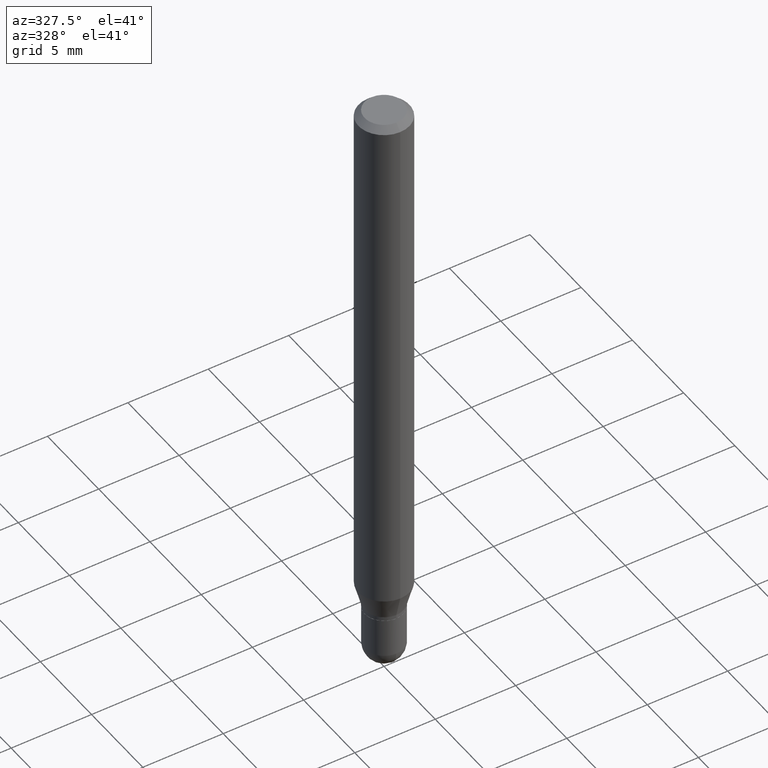
[diagram: clean part render]
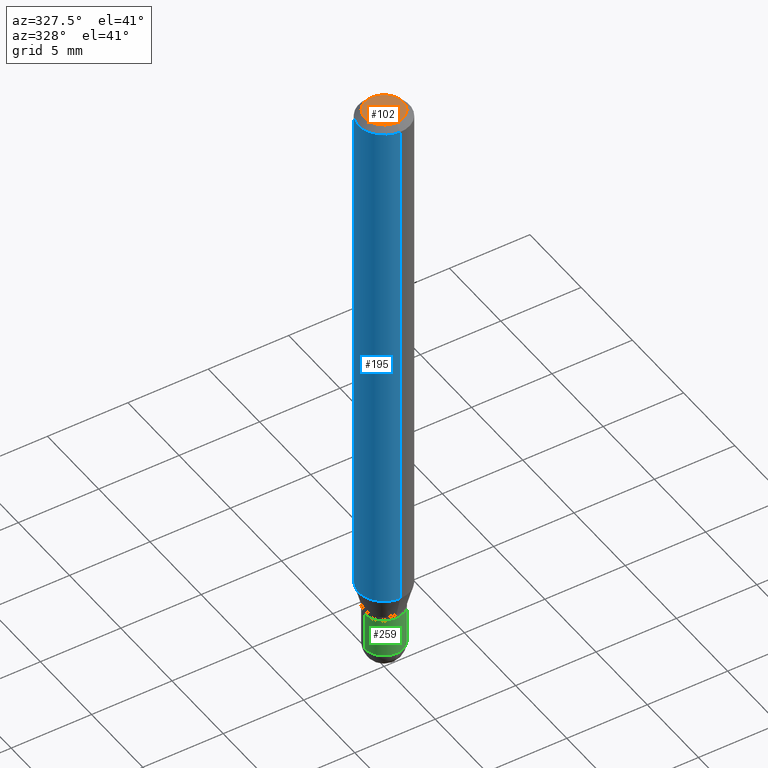
[diagram: same view with three faces highlighted in distinct colors, each labeled with its STEP entity id]
A machine part, auxiliary view with three faces highlighted in distinct colors.
Their STEP definitions:

[orange] entity #102 — the highlighted planar face has unit normal (0, -0, -1).
#10 = EDGE_CURVE ( 'NONE', #50, #482, #465, .T. ) ;
#22 = CARTESIAN_POINT ( 'NONE',  ( -3.773273898774340269E-16, -0.04749999999999999362, -1.623047973916829079E-16 ) ) ;
#50 = VERTEX_POINT ( 'NONE', #22 ) ;
#96 = ORIENTED_EDGE ( 'NONE', *, *, #476, .T. ) ;
#102 = ADVANCED_FACE ( 'NONE', ( #346 ), #421, .F. ) ;
#193 = CIRCLE ( 'NONE', #361, 0.04749999999999999362 ) ;
#228 = DIRECTION ( 'NONE',  ( 2.445492425318203323E-29, -3.491447514900276167E-15, -1.000000000000000000 ) ) ;
#278 = DIRECTION ( 'NONE',  ( -2.445492425318203603E-29, 3.491447514900276167E-15, 1.000000000000000000 ) ) ;
#301 = DIRECTION ( 'NONE',  ( -6.982962677686266711E-15, -1.000000000000000000, 3.491447514900276561E-15 ) ) ;
#309 = AXIS2_PLACEMENT_3D ( 'NONE', #316, #228, #503 ) ;
#316 = CARTESIAN_POINT ( 'NONE',  ( 3.316907271900976096E-16, 0.04749999999999999362, -3.299180341324861161E-16 ) ) ;
#331 = EDGE_LOOP ( 'NONE', ( #96, #409 ) ) ;
#346 = FACE_OUTER_BOUND ( 'NONE', #331, .T. ) ;
#361 = AXIS2_PLACEMENT_3D ( 'NONE', #431, #278, #436 ) ;
#374 = DIRECTION ( 'NONE',  ( -2.445492425318203603E-29, 3.491447514900276167E-15, 1.000000000000000000 ) ) ;
#409 = ORIENTED_EDGE ( 'NONE', *, *, #10, .T. ) ;
#412 = CARTESIAN_POINT ( 'NONE',  ( 8.024848040406891004E-45, -1.145713454601491320E-30, -3.281485543494460160E-16 ) ) ;
#421 = PLANE ( 'NONE',  #309 ) ;
#431 = CARTESIAN_POINT ( 'NONE',  ( 8.024848040406891004E-45, -1.145713454601491320E-30, -3.281485543494460160E-16 ) ) ;
#436 = DIRECTION ( 'NONE',  ( -6.982962677686266711E-15, -1.000000000000000000, 3.491447514900276561E-15 ) ) ;
#465 = CIRCLE ( 'NONE', #473, 0.04749999999999999362 ) ;
#473 = AXIS2_PLACEMENT_3D ( 'NONE', #412, #374, #301 ) ;
#475 = CARTESIAN_POINT ( 'NONE',  ( 3.840629472727447874E-16, 0.04749999999999999362, -4.939923113072091241E-16 ) ) ;
#476 = EDGE_CURVE ( 'NONE', #482, #50, #193, .T. ) ;
#482 = VERTEX_POINT ( 'NONE', #475 ) ;
#503 = DIRECTION ( 'NONE',  ( 6.982962677686265922E-15, 1.000000000000000000, -3.491447514900276167E-15 ) ) ;

[blue] entity #195 — the highlighted cylindrical surface (edge-blend (fillet) strip) has radius 1.5875 mm, axis along (-0, 0, 1).
#1 = ORIENTED_EDGE ( 'NONE', *, *, #66, .T. ) ;
#2 = CYLINDRICAL_SURFACE ( 'NONE', #247, 0.06250000000000000000 ) ;
#11 = FACE_OUTER_BOUND ( 'NONE', #364, .T. ) ;
#17 = CARTESIAN_POINT ( 'NONE',  ( -4.364351673553598192E-16, -0.06250000000000446865, -1.291019237886467108 ) ) ;
#19 = CARTESIAN_POINT ( 'NONE',  ( -4.364351673553912750E-16, -0.06250000000000005551, -0.01500000000000011047 ) ) ;
#47 = VERTEX_POINT ( 'NONE', #17 ) ;
#53 = ORIENTED_EDGE ( 'NONE', *, *, #347, .F. ) ;
#57 = DIRECTION ( 'NONE',  ( -6.982962677686265922E-15, -1.000000000000000000, 3.483106191921935554E-15 ) ) ;
#66 = EDGE_CURVE ( 'NONE', #335, #47, #298, .T. ) ;
#72 = AXIS2_PLACEMENT_3D ( 'NONE', #466, #269, #57 ) ;
#74 = EDGE_CURVE ( 'NONE', #335, #243, #388, .T. ) ;
#76 = DIRECTION ( 'NONE',  ( -2.445492425318203883E-29, 3.491447514900276167E-15, 1.000000000000000000 ) ) ;
#83 = CARTESIAN_POINT ( 'NONE',  ( 0.000000000000000000, 0.000000000000000000, 0.000000000000000000 ) ) ;
#104 = DIRECTION ( 'NONE',  ( -2.445492425318203883E-29, 3.491447514900276167E-15, 1.000000000000000000 ) ) ;
#130 = VERTEX_POINT ( 'NONE', #19 ) ;
#151 = DIRECTION ( 'NONE',  ( -6.982962677686265922E-15, -1.000000000000000000, 4.370956789862821150E-15 ) ) ;
#154 = CARTESIAN_POINT ( 'NONE',  ( -4.364351673553916201E-16, -0.06250000000000000000, 2.182154696812672604E-16 ) ) ;
#187 = CARTESIAN_POINT ( 'NONE',  ( 4.440892098500942692E-16, 0.06249999999999551747, -1.291019237886467552 ) ) ;
#195 = ADVANCED_FACE ( 'NONE', ( #11 ), #2, .T. ) ;
#220 = LINE ( 'NONE', #154, #283 ) ;
#227 = CARTESIAN_POINT ( 'NONE',  ( 4.440892098500943678E-16, 0.06249999999999995837, -0.01500000000000054588 ) ) ;
#242 = DIRECTION ( 'NONE',  ( -6.982962677686265922E-15, -1.000000000000000000, 3.491447514900276167E-15 ) ) ;
#243 = VERTEX_POINT ( 'NONE', #227 ) ;
#247 = AXIS2_PLACEMENT_3D ( 'NONE', #83, #407, #242 ) ;
#269 = DIRECTION ( 'NONE',  ( -2.445492425318203603E-29, 3.491447514900276167E-15, 1.000000000000000000 ) ) ;
#283 = VECTOR ( 'NONE', #76, 39.37007874015748143 ) ;
#298 = CIRCLE ( 'NONE', #477, 0.06250000000000000000 ) ;
#335 = VERTEX_POINT ( 'NONE', #187 ) ;
#336 = VECTOR ( 'NONE', #104, 39.37007874015748143 ) ;
#347 = EDGE_CURVE ( 'NONE', #243, #130, #444, .T. ) ;
#364 = EDGE_LOOP ( 'NONE', ( #408, #1, #480, #53 ) ) ;
#388 = LINE ( 'NONE', #468, #336 ) ;
#393 = EDGE_CURVE ( 'NONE', #47, #130, #220, .T. ) ;
#407 = DIRECTION ( 'NONE',  ( -2.445492425318203603E-29, 3.491447514900276167E-15, 1.000000000000000000 ) ) ;
#408 = ORIENTED_EDGE ( 'NONE', *, *, #74, .F. ) ;
#429 = CARTESIAN_POINT ( 'NONE',  ( 3.157177767191435444E-29, -4.507525909807155110E-15, -1.291019237886467330 ) ) ;
#444 = CIRCLE ( 'NONE', #72, 0.06250000000000000000 ) ;
#458 = DIRECTION ( 'NONE',  ( -2.445492425318203603E-29, 3.491447514900276167E-15, 1.000000000000000000 ) ) ;
#466 = CARTESIAN_POINT ( 'NONE',  ( 3.668238637977385892E-31, -5.237171272350528635E-17, -0.01500000000000032904 ) ) ;
#468 = CARTESIAN_POINT ( 'NONE',  ( 4.440892098500625669E-16, 0.06250000000000000000, -2.182154696812672604E-16 ) ) ;
#477 = AXIS2_PLACEMENT_3D ( 'NONE', #429, #458, #151 ) ;
#480 = ORIENTED_EDGE ( 'NONE', *, *, #393, .T. ) ;

[green] entity #259 — the highlighted cylindrical surface (edge-blend (fillet) strip) has radius 1.2065 mm, axis along (-0, 0, 1).
#6 = EDGE_LOOP ( 'NONE', ( #399, #208, #403, #449, #173 ) ) ;
#16 = CARTESIAN_POINT ( 'NONE',  ( 3.552043440983912297E-29, -5.071376644669670605E-15, -1.452500000000000346 ) ) ;
#27 = CYLINDRICAL_SURFACE ( 'NONE', #474, 0.04750000000000000749 ) ;
#30 = CARTESIAN_POINT ( 'NONE',  ( 0.04750000000000000749, -5.236349137930007031E-15, -1.452500000000000346 ) ) ;
#44 = DIRECTION ( 'NONE',  ( 1.000000000000000000, -6.982962677686261977E-15, 0.000000000000000000 ) ) ;
#54 = AXIS2_PLACEMENT_3D ( 'NONE', #16, #496, #339 ) ;
#112 = FACE_OUTER_BOUND ( 'NONE', #6, .T. ) ;
#120 = CIRCLE ( 'NONE', #405, 0.04749999999999999362 ) ;
#121 = LINE ( 'NONE', #439, #343 ) ;
#135 = VERTEX_POINT ( 'NONE', #497 ) ;
#137 = CIRCLE ( 'NONE', #425, 0.04750000000000000749 ) ;
#148 = CARTESIAN_POINT ( 'NONE',  ( 0.000000000000000000, 0.000000000000000000, 0.000000000000000000 ) ) ;
#163 = CARTESIAN_POINT ( 'NONE',  ( -3.316907271900626039E-16, -0.04750000000000514228, -1.452500000000000124 ) ) ;
#169 = VERTEX_POINT ( 'NONE', #163 ) ;
#173 = ORIENTED_EDGE ( 'NONE', *, *, #184, .F. ) ;
#184 = EDGE_CURVE ( 'NONE', #135, #297, #120, .T. ) ;
#185 = DIRECTION ( 'NONE',  ( -2.445468806185136877E-29, 3.491481338843145188E-15, 1.000000000000000000 ) ) ;
#191 = LINE ( 'NONE', #260, #239 ) ;
#198 = CARTESIAN_POINT ( 'NONE',  ( -0.04750000000000000749, -4.567150611253862815E-15, -1.452500000000000346 ) ) ;
#208 = ORIENTED_EDGE ( 'NONE', *, *, #362, .T. ) ;
#222 = CIRCLE ( 'NONE', #54, 0.04750000000000000749 ) ;
#224 = DIRECTION ( 'NONE',  ( -2.445468806185136597E-29, 3.491481338843145583E-15, 1.000000000000000000 ) ) ;
#233 = DIRECTION ( 'NONE',  ( -2.445468806185136877E-29, 3.491481338843145188E-15, 1.000000000000000000 ) ) ;
#239 = VECTOR ( 'NONE', #185, 39.37007874015748143 ) ;
#259 = ADVANCED_FACE ( 'NONE', ( #112 ), #27, .T. ) ;
#260 = CARTESIAN_POINT ( 'NONE',  ( -0.04750000000000000749, 3.375077994860476415E-16, -2.336494167871080260E-30 ) ) ;
#286 = EDGE_CURVE ( 'NONE', #484, #135, #191, .T. ) ;
#297 = VERTEX_POINT ( 'NONE', #380 ) ;
#315 = CARTESIAN_POINT ( 'NONE',  ( 3.552043440983912297E-29, -5.071376644669670605E-15, -1.452500000000000346 ) ) ;
#318 = DIRECTION ( 'NONE',  ( -2.445468806185136597E-29, 3.491481338843145583E-15, 1.000000000000000000 ) ) ;
#339 = DIRECTION ( 'NONE',  ( 1.000000000000000000, -6.982962677686260400E-15, 0.000000000000000000 ) ) ;
#343 = VECTOR ( 'NONE', #233, 39.37007874015748143 ) ;
#357 = CARTESIAN_POINT ( 'NONE',  ( 3.318501169993230375E-29, -4.737940176810148435E-15, -1.356999999999999984 ) ) ;
#362 = EDGE_CURVE ( 'NONE', #484, #169, #222, .T. ) ;
#380 = CARTESIAN_POINT ( 'NONE',  ( 0.04749999999999999362, -5.069630904000245946E-15, -1.356999999999999984 ) ) ;
#395 = DIRECTION ( 'NONE',  ( 1.000000000000000000, -6.982962677686260400E-15, 0.000000000000000000 ) ) ;
#399 = ORIENTED_EDGE ( 'NONE', *, *, #286, .F. ) ;
#403 = ORIENTED_EDGE ( 'NONE', *, *, #494, .T. ) ;
#404 = VERTEX_POINT ( 'NONE', #30 ) ;
#405 = AXIS2_PLACEMENT_3D ( 'NONE', #357, #445, #44 ) ;
#425 = AXIS2_PLACEMENT_3D ( 'NONE', #315, #318, #395 ) ;
#439 = CARTESIAN_POINT ( 'NONE',  ( 0.04750000000000000749, -3.316907271900977082E-16, 2.316183968503069432E-30 ) ) ;
#445 = DIRECTION ( 'NONE',  ( -2.445468806185136597E-29, 3.491481338843145583E-15, 1.000000000000000000 ) ) ;
#449 = ORIENTED_EDGE ( 'NONE', *, *, #459, .T. ) ;
#459 = EDGE_CURVE ( 'NONE', #404, #297, #121, .T. ) ;
#460 = DIRECTION ( 'NONE',  ( 1.000000000000000000, -6.982962677686266711E-15, 4.876176775795934672E-29 ) ) ;
#474 = AXIS2_PLACEMENT_3D ( 'NONE', #148, #224, #460 ) ;
#484 = VERTEX_POINT ( 'NONE', #198 ) ;
#494 = EDGE_CURVE ( 'NONE', #169, #404, #137, .T. ) ;
#496 = DIRECTION ( 'NONE',  ( -2.445468806185136597E-29, 3.491481338843145583E-15, 1.000000000000000000 ) ) ;
#497 = CARTESIAN_POINT ( 'NONE',  ( -0.04749999999999999362, -4.567150611253862815E-15, -1.356999999999999984 ) ) ;